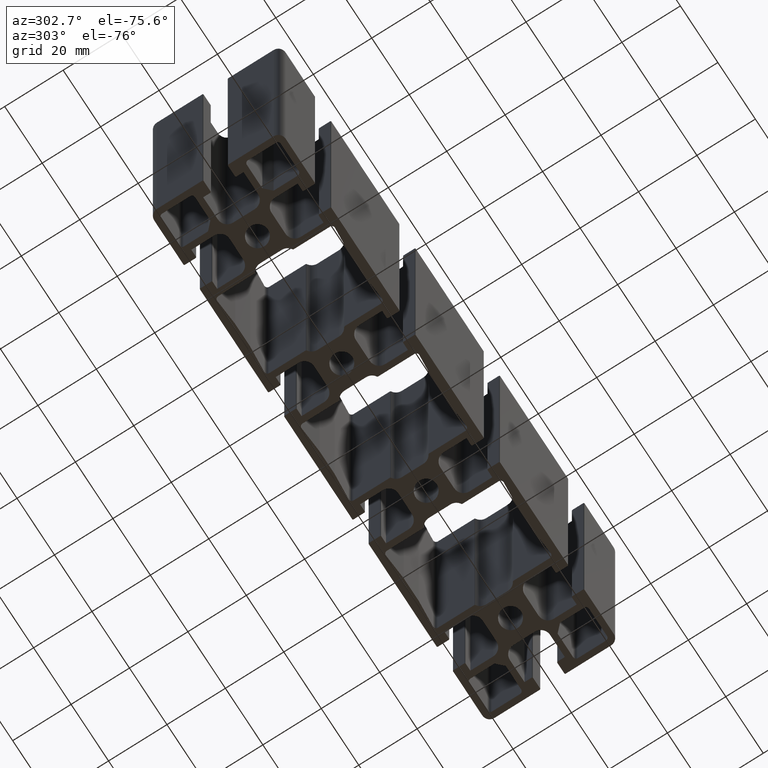
[diagram: clean part render]
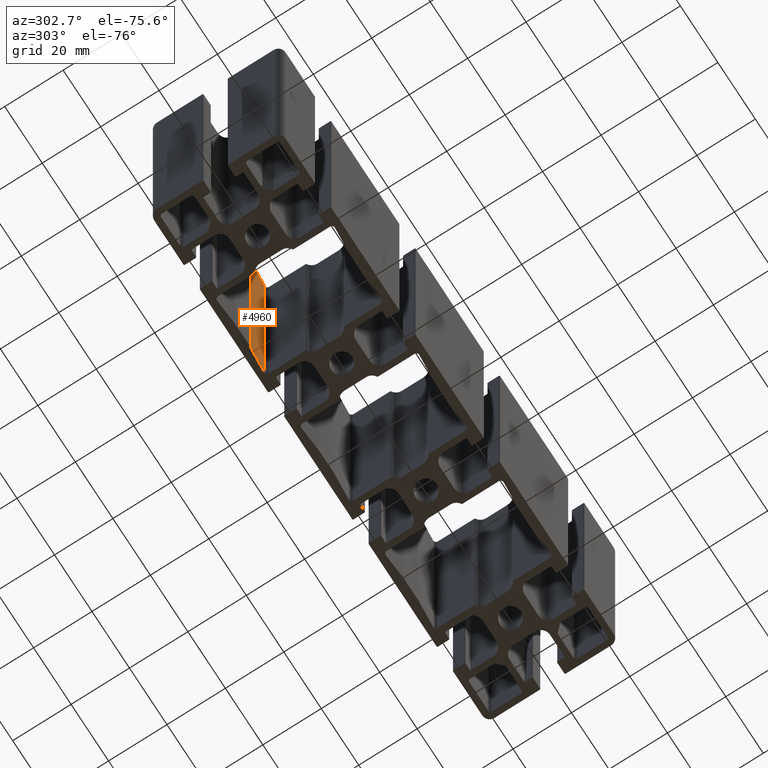
[diagram: same view with one face highlighted and labeled with its STEP entity id]
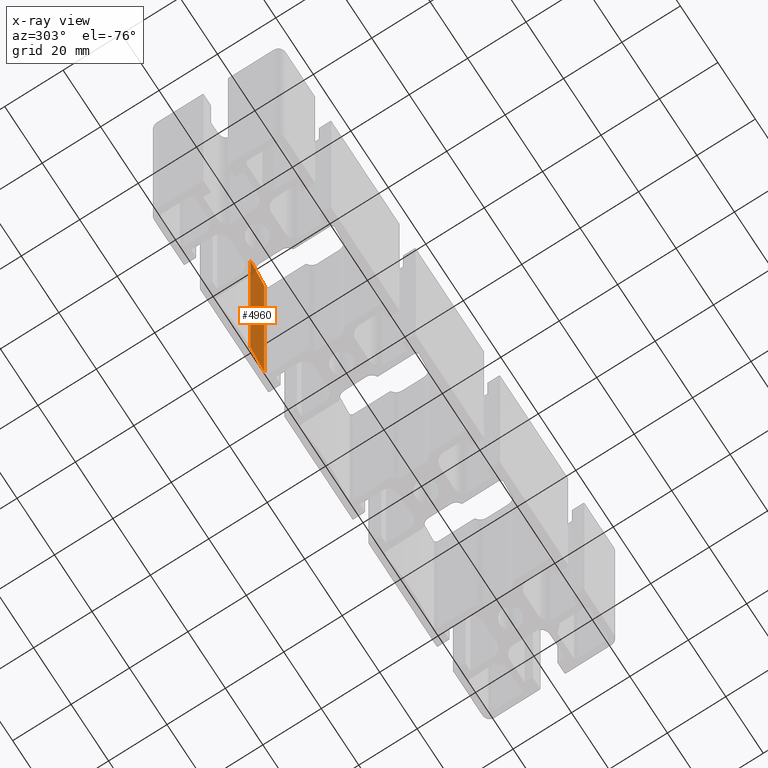
[diagram: x-ray of the same camera — body ghosted, the highlighted face saturated]
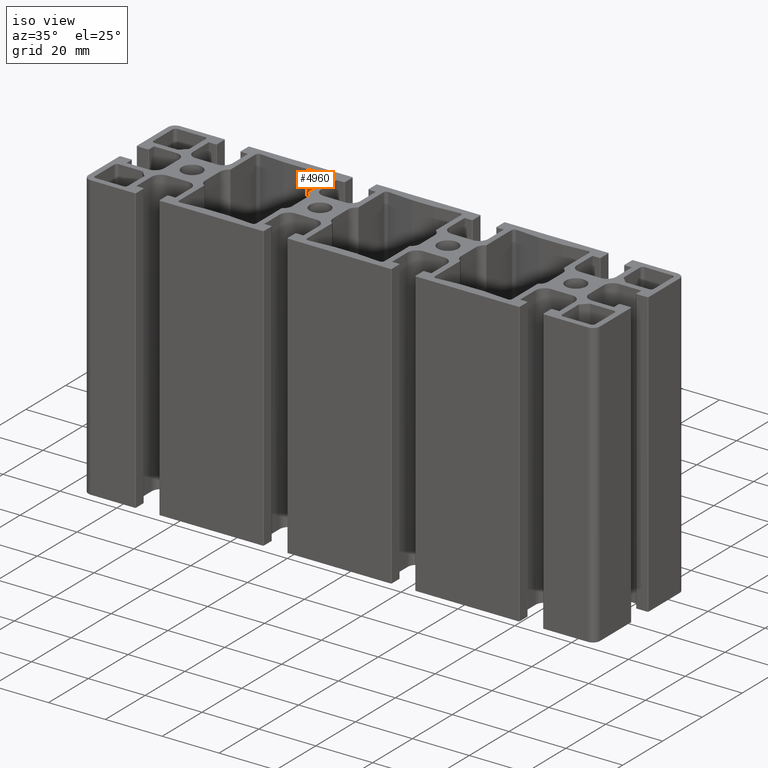
[diagram: same view with one face highlighted and labeled with its STEP entity id]
A machine part, auxiliary view. The second image highlights one B-rep face of the part: STEP entity #4960.
The next image is the same camera in x-ray: the body ghosted, the highlighted face saturated — about 4% of this face is hidden behind the body in this view.
A second angle (iso view) of the same face is appended — the face is thin or edge-on in the first view.
In plain terms, the highlighted planar face has unit normal (-0.0767, 0.9971, 0).
Its self-contained STEP definition (entity closure, byte-faithful):
#408=FACE_OUTER_BOUND('',#666,.T.);
#666=EDGE_LOOP('',(#3347,#3348,#3349,#3350));
#970=LINE('',#7322,#1502);
#971=LINE('',#7325,#1503);
#972=LINE('',#7327,#1504);
#973=LINE('',#7328,#1505);
#1502=VECTOR('',#5806,100.);
#1503=VECTOR('',#5809,8.54847544709787);
#1504=VECTOR('',#5810,8.54847544709787);
#1505=VECTOR('',#5811,100.);
#2033=VERTEX_POINT('',#7318);
#2034=VERTEX_POINT('',#7320);
#2035=VERTEX_POINT('',#7324);
#2036=VERTEX_POINT('',#7326);
#2564=EDGE_CURVE('',#2034,#2033,#970,.T.);
#2565=EDGE_CURVE('',#2033,#2035,#971,.T.);
#2566=EDGE_CURVE('',#2036,#2034,#972,.T.);
#2567=EDGE_CURVE('',#2036,#2035,#973,.T.);
#3347=ORIENTED_EDGE('',*,*,#2565,.F.);
#3348=ORIENTED_EDGE('',*,*,#2564,.F.);
#3349=ORIENTED_EDGE('',*,*,#2566,.F.);
#3350=ORIENTED_EDGE('',*,*,#2567,.T.);
#4809=PLANE('',#5238);
#4960=ADVANCED_FACE('',(#408),#4809,.F.);
#5238=AXIS2_PLACEMENT_3D('',#7323,#5807,#5808);
#5806=DIRECTION('',(0.,0.,1.));
#5807=DIRECTION('center_axis',(-0.0767190281268186,0.99705275222692,0.));
#5808=DIRECTION('ref_axis',(0.,0.,1.));
#5809=DIRECTION('',(0.99705275222692,0.0767190281268186,0.));
#5810=DIRECTION('',(-0.99705275222692,-0.0767190281268186,0.));
#5811=DIRECTION('',(0.,0.,1.));
#7318=CARTESIAN_POINT('',(-41.00000000001,19.50000000001,100.));
#7320=CARTESIAN_POINT('',(-41.00000000001,19.50000000001,0.));
#7322=CARTESIAN_POINT('',(-41.00000000001,19.50000000001,0.));
#7323=CARTESIAN_POINT('Origin',(-41.00000000001,19.50000000001,0.));
#7324=CARTESIAN_POINT('',(-32.4767190281368,20.1558307282773,100.));
#7325=CARTESIAN_POINT('',(-21.3664650420629,21.0107181814737,100.));
#7326=CARTESIAN_POINT('',(-32.4767190281368,20.1558307282773,0.));
#7327=CARTESIAN_POINT('',(-21.3664650420629,21.0107181814737,0.));
#7328=CARTESIAN_POINT('',(-32.4767190281368,20.1558307282773,0.));